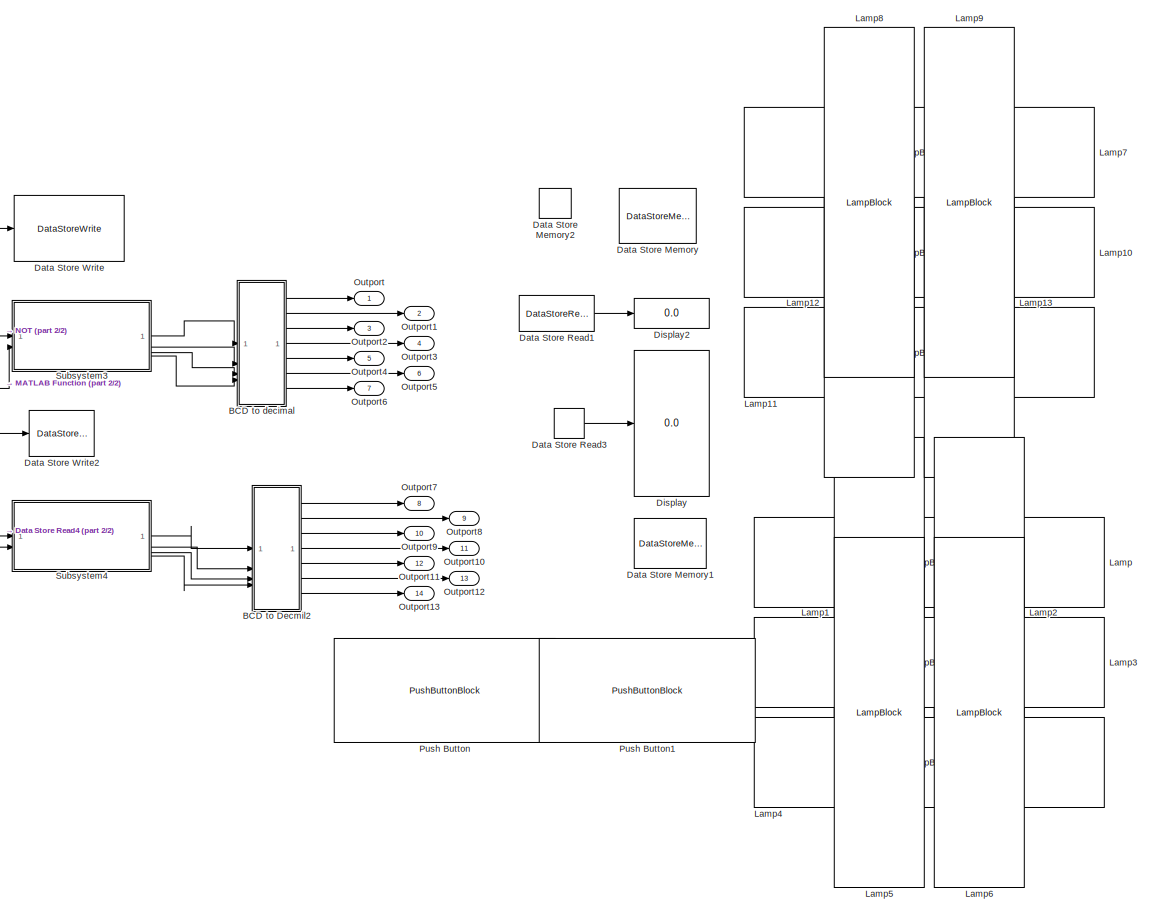
[diagram: root canvas - part 1/2, right side, full height]
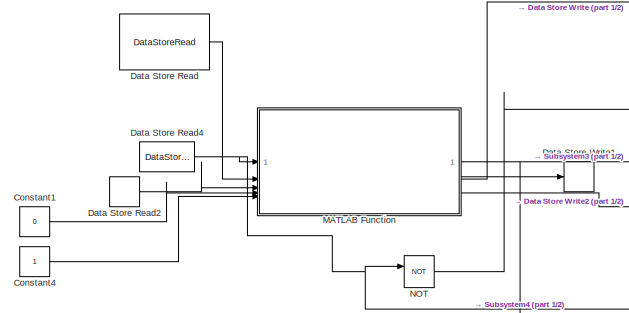
[diagram: root canvas - part 2/2, middle left region]
MODEL slx_940a280b1a0e
KIND model
CONFIG AbsTol = auto
CONFIG EnableMultiTasking = off
CONFIG FixedStep = auto
CONFIG MaxStep = auto
CONFIG MinStep = auto
CONFIG RelTol = 1e-3
CONFIG SampleTimeConstraint = Unconstrained
CONFIG SolverName = VariableStepAuto
CONFIG StartTime = 0.0
CONFIG StopTime = inf
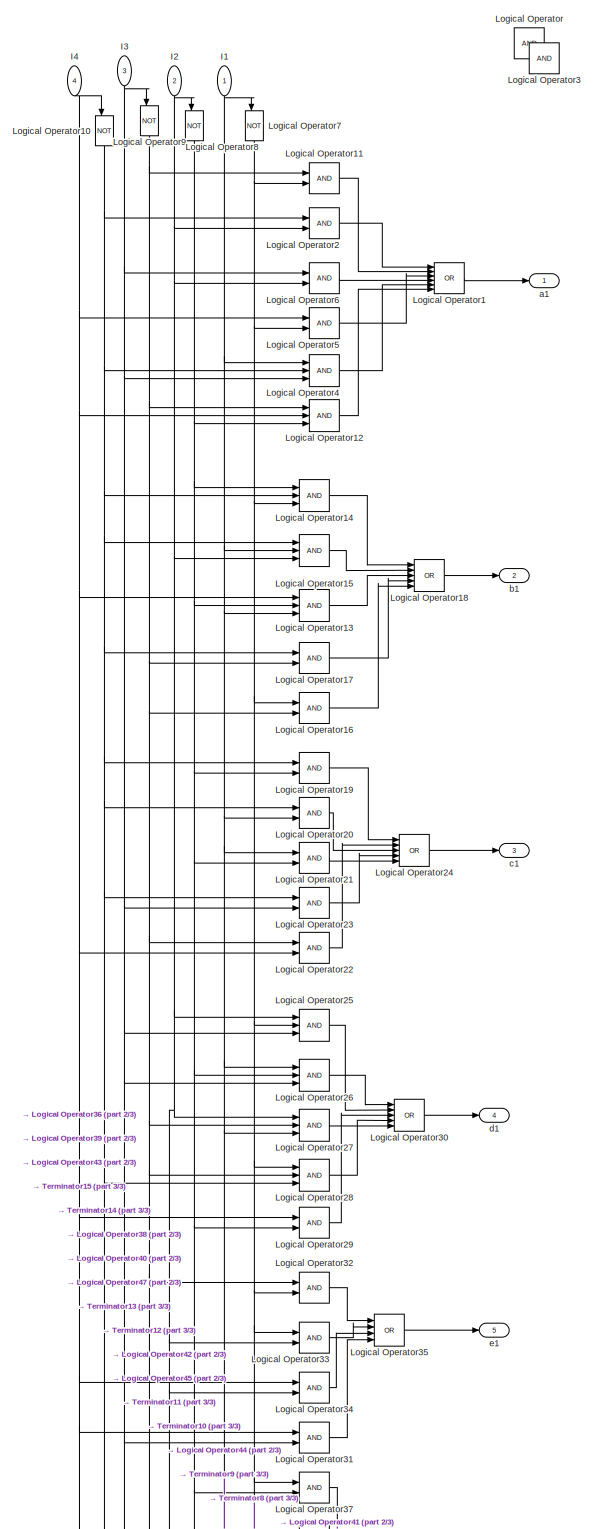
[diagram: BCD to Decmil2 - part 1/3, most of the canvas]
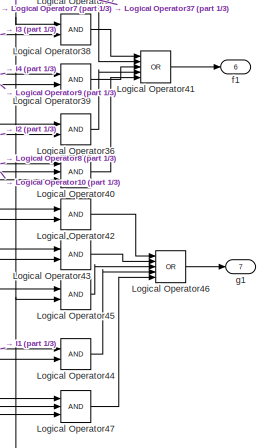
[diagram: BCD to Decmil2 - part 2/3, bottom center region]
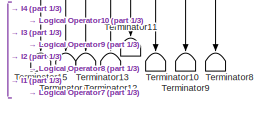
[diagram: BCD to Decmil2 - part 3/3, bottom left region]
BLOCK [SubSystem] BCD to Decmil2
  NameLocation = top
  TreatAsAtomicUnit = on
BLOCK [Inport] BCD to Decmil2/I1
  NameLocation = left
BLOCK [Inport] BCD to Decmil2/I2
  NameLocation = left
  Port = 2
BLOCK [Inport] BCD to Decmil2/I3
  NameLocation = left
  Port = 3
BLOCK [Inport] BCD to Decmil2/I4
  NameLocation = left
  Port = 4
BLOCK [Logic] BCD to Decmil2/Logical Operator
  AllPortsSameDT = off
  OutDataTypeStr = boolean
BLOCK [Logic] BCD to Decmil2/Logical Operator1
  AllPortsSameDT = off
  Inputs = 6
  Operator = OR
  OutDataTypeStr = boolean
BLOCK [Logic] BCD to Decmil2/Logical Operator10
  AllPortsSameDT = off
  NameLocation = left
  Operator = NOT
  OutDataTypeStr = boolean
BLOCK [Logic] BCD to Decmil2/Logical Operator11
  AllPortsSameDT = off
  OutDataTypeStr = boolean
BLOCK [Logic] BCD to Decmil2/Logical Operator12
  AllPortsSameDT = off
  Inputs = 3
  OutDataTypeStr = boolean
BLOCK [Logic] BCD to Decmil2/Logical Operator13
  AllPortsSameDT = off
  Inputs = 3
  OutDataTypeStr = boolean
BLOCK [Logic] BCD to Decmil2/Logical Operator14
  AllPortsSameDT = off
  Inputs = 3
  OutDataTypeStr = boolean
BLOCK [Logic] BCD to Decmil2/Logical Operator15
  AllPortsSameDT = off
  Inputs = 3
  OutDataTypeStr = boolean
BLOCK [Logic] BCD to Decmil2/Logical Operator16
  AllPortsSameDT = off
  OutDataTypeStr = boolean
BLOCK [Logic] BCD to Decmil2/Logical Operator17
  AllPortsSameDT = off
  OutDataTypeStr = boolean
BLOCK [Logic] BCD to Decmil2/Logical Operator18
  AllPortsSameDT = off
  Inputs = 5
  Operator = OR
  OutDataTypeStr = boolean
BLOCK [Logic] BCD to Decmil2/Logical Operator19
  AllPortsSameDT = off
  OutDataTypeStr = boolean
BLOCK [Logic] BCD to Decmil2/Logical Operator2
  AllPortsSameDT = off
  OutDataTypeStr = boolean
BLOCK [Logic] BCD to Decmil2/Logical Operator20
  AllPortsSameDT = off
  OutDataTypeStr = boolean
BLOCK [Logic] BCD to Decmil2/Logical Operator21
  AllPortsSameDT = off
  OutDataTypeStr = boolean
BLOCK [Logic] BCD to Decmil2/Logical Operator22
  AllPortsSameDT = off
  OutDataTypeStr = boolean
BLOCK [Logic] BCD to Decmil2/Logical Operator23
  AllPortsSameDT = off
  OutDataTypeStr = boolean
BLOCK [Logic] BCD to Decmil2/Logical Operator24
  AllPortsSameDT = off
  Inputs = 5
  Operator = OR
  OutDataTypeStr = boolean
BLOCK [Logic] BCD to Decmil2/Logical Operator25
  AllPortsSameDT = off
  Inputs = 3
  OutDataTypeStr = boolean
BLOCK [Logic] BCD to Decmil2/Logical Operator26
  AllPortsSameDT = off
  Inputs = 3
  OutDataTypeStr = boolean
BLOCK [Logic] BCD to Decmil2/Logical Operator27
  AllPortsSameDT = off
  Inputs = 3
  OutDataTypeStr = boolean
BLOCK [Logic] BCD to Decmil2/Logical Operator28
  AllPortsSameDT = off
  Inputs = 3
  OutDataTypeStr = boolean
BLOCK [Logic] BCD to Decmil2/Logical Operator29
  AllPortsSameDT = off
  OutDataTypeStr = boolean
BLOCK [Logic] BCD to Decmil2/Logical Operator3
  AllPortsSameDT = off
  OutDataTypeStr = boolean
BLOCK [Logic] BCD to Decmil2/Logical Operator30
  AllPortsSameDT = off
  Inputs = 5
  Operator = OR
  OutDataTypeStr = boolean
BLOCK [Logic] BCD to Decmil2/Logical Operator31
  AllPortsSameDT = off
  OutDataTypeStr = boolean
BLOCK [Logic] BCD to Decmil2/Logical Operator32
  AllPortsSameDT = off
  OutDataTypeStr = boolean
BLOCK [Logic] BCD to Decmil2/Logical Operator33
  AllPortsSameDT = off
  OutDataTypeStr = boolean
BLOCK [Logic] BCD to Decmil2/Logical Operator34
  AllPortsSameDT = off
  OutDataTypeStr = boolean
BLOCK [Logic] BCD to Decmil2/Logical Operator35
  AllPortsSameDT = off
  Inputs = 4
  Operator = OR
  OutDataTypeStr = boolean
BLOCK [Logic] BCD to Decmil2/Logical Operator36
  AllPortsSameDT = off
  OutDataTypeStr = boolean
BLOCK [Logic] BCD to Decmil2/Logical Operator37
  AllPortsSameDT = off
  OutDataTypeStr = boolean
BLOCK [Logic] BCD to Decmil2/Logical Operator38
  AllPortsSameDT = off
  OutDataTypeStr = boolean
BLOCK [Logic] BCD to Decmil2/Logical Operator39
  AllPortsSameDT = off
  OutDataTypeStr = boolean
BLOCK [Logic] BCD to Decmil2/Logical Operator4
  AllPortsSameDT = off
  Inputs = 3
  OutDataTypeStr = boolean
BLOCK [Logic] BCD to Decmil2/Logical Operator40
  AllPortsSameDT = off
  Inputs = 3
  OutDataTypeStr = boolean
BLOCK [Logic] BCD to Decmil2/Logical Operator41
  AllPortsSameDT = off
  Inputs = 5
  Operator = OR
  OutDataTypeStr = boolean
BLOCK [Logic] BCD to Decmil2/Logical Operator42
  AllPortsSameDT = off
  OutDataTypeStr = boolean
BLOCK [Logic] BCD to Decmil2/Logical Operator43
  AllPortsSameDT = off
  OutDataTypeStr = boolean
BLOCK [Logic] BCD to Decmil2/Logical Operator44
  AllPortsSameDT = off
  OutDataTypeStr = boolean
BLOCK [Logic] BCD to Decmil2/Logical Operator45
  AllPortsSameDT = off
  OutDataTypeStr = boolean
BLOCK [Logic] BCD to Decmil2/Logical Operator46
  AllPortsSameDT = off
  Inputs = 5
  Operator = OR
  OutDataTypeStr = boolean
BLOCK [Logic] BCD to Decmil2/Logical Operator47
  AllPortsSameDT = off
  Inputs = 3
  OutDataTypeStr = boolean
BLOCK [Logic] BCD to Decmil2/Logical Operator5
  AllPortsSameDT = off
  OutDataTypeStr = boolean
BLOCK [Logic] BCD to Decmil2/Logical Operator6
  AllPortsSameDT = off
  OutDataTypeStr = boolean
BLOCK [Logic] BCD to Decmil2/Logical Operator7
  AllPortsSameDT = off
  NameLocation = left
  Operator = NOT
  OutDataTypeStr = boolean
BLOCK [Logic] BCD to Decmil2/Logical Operator8
  AllPortsSameDT = off
  NameLocation = left
  Operator = NOT
  OutDataTypeStr = boolean
BLOCK [Logic] BCD to Decmil2/Logical Operator9
  AllPortsSameDT = off
  NameLocation = left
  Operator = NOT
  OutDataTypeStr = boolean
BLOCK [Terminator] BCD to Decmil2/Terminator10
  NameLocation = left
BLOCK [Terminator] BCD to Decmil2/Terminator11
  NameLocation = left
BLOCK [Terminator] BCD to Decmil2/Terminator12
  NameLocation = left
BLOCK [Terminator] BCD to Decmil2/Terminator13
  NameLocation = left
BLOCK [Terminator] BCD to Decmil2/Terminator14
  NameLocation = left
BLOCK [Terminator] BCD to Decmil2/Terminator15
  NameLocation = left
BLOCK [Terminator] BCD to Decmil2/Terminator8
  NameLocation = left
BLOCK [Terminator] BCD to Decmil2/Terminator9
  NameLocation = left
BLOCK [Outport] BCD to Decmil2/a1
BLOCK [Outport] BCD to Decmil2/b1
  Port = 2
BLOCK [Outport] BCD to Decmil2/c1
  Port = 3
BLOCK [Outport] BCD to Decmil2/d1
  Port = 4
BLOCK [Outport] BCD to Decmil2/e1
  Port = 5
BLOCK [Outport] BCD to Decmil2/f1
  Port = 6
BLOCK [Outport] BCD to Decmil2/g1
  Port = 7
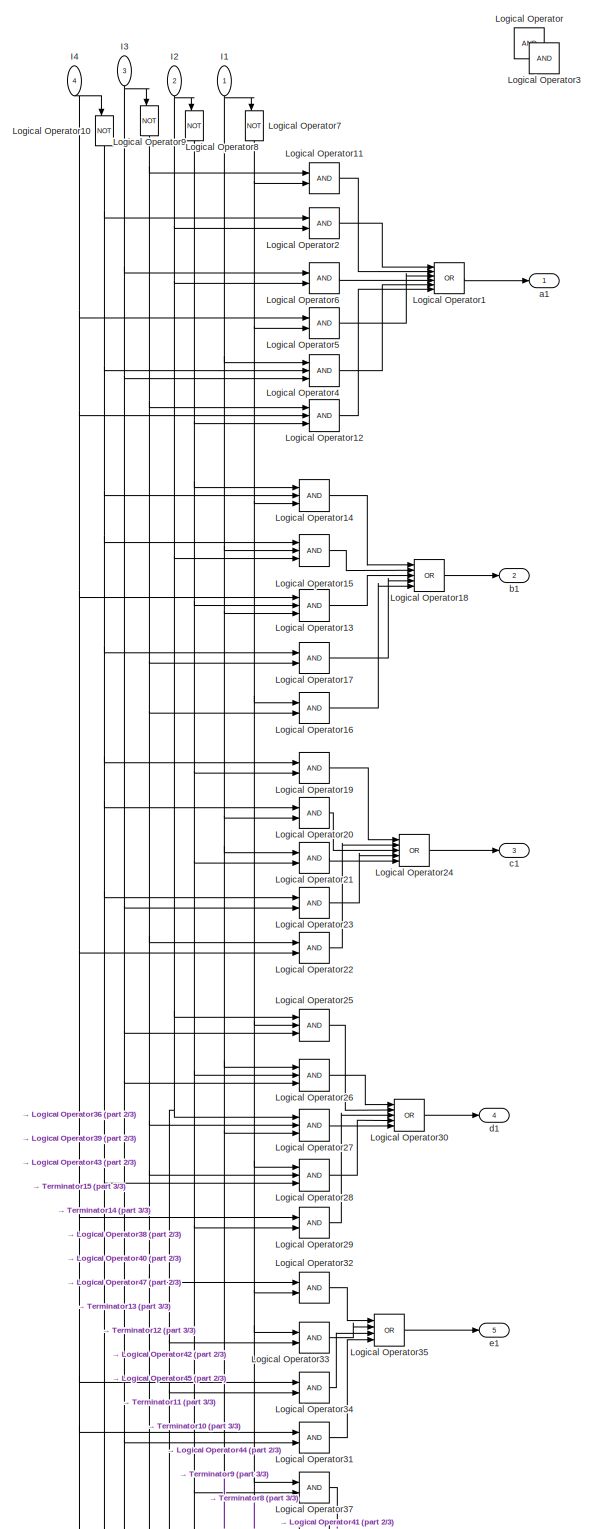
[diagram: BCD to decimal - part 1/3, most of the canvas]
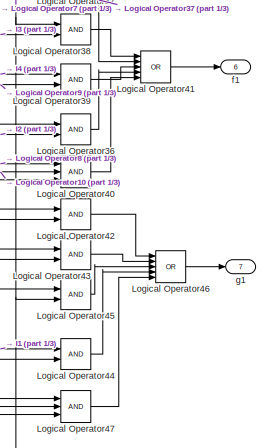
[diagram: BCD to decimal - part 2/3, bottom center region]
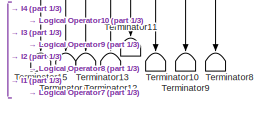
[diagram: BCD to decimal - part 3/3, bottom left region]
BLOCK [SubSystem] BCD to decimal
  NameLocation = top
  TreatAsAtomicUnit = on
BLOCK [Inport] BCD to decimal/I1
  NameLocation = left
BLOCK [Inport] BCD to decimal/I2
  NameLocation = left
  Port = 2
BLOCK [Inport] BCD to decimal/I3
  NameLocation = left
  Port = 3
BLOCK [Inport] BCD to decimal/I4
  NameLocation = left
  Port = 4
BLOCK [Logic] BCD to decimal/Logical Operator
  AllPortsSameDT = off
  OutDataTypeStr = boolean
BLOCK [Logic] BCD to decimal/Logical Operator1
  AllPortsSameDT = off
  Inputs = 6
  Operator = OR
  OutDataTypeStr = boolean
BLOCK [Logic] BCD to decimal/Logical Operator10
  AllPortsSameDT = off
  NameLocation = left
  Operator = NOT
  OutDataTypeStr = boolean
BLOCK [Logic] BCD to decimal/Logical Operator11
  AllPortsSameDT = off
  OutDataTypeStr = boolean
BLOCK [Logic] BCD to decimal/Logical Operator12
  AllPortsSameDT = off
  Inputs = 3
  OutDataTypeStr = boolean
BLOCK [Logic] BCD to decimal/Logical Operator13
  AllPortsSameDT = off
  Inputs = 3
  OutDataTypeStr = boolean
BLOCK [Logic] BCD to decimal/Logical Operator14
  AllPortsSameDT = off
  Inputs = 3
  OutDataTypeStr = boolean
BLOCK [Logic] BCD to decimal/Logical Operator15
  AllPortsSameDT = off
  Inputs = 3
  OutDataTypeStr = boolean
BLOCK [Logic] BCD to decimal/Logical Operator16
  AllPortsSameDT = off
  OutDataTypeStr = boolean
BLOCK [Logic] BCD to decimal/Logical Operator17
  AllPortsSameDT = off
  OutDataTypeStr = boolean
BLOCK [Logic] BCD to decimal/Logical Operator18
  AllPortsSameDT = off
  Inputs = 5
  Operator = OR
  OutDataTypeStr = boolean
BLOCK [Logic] BCD to decimal/Logical Operator19
  AllPortsSameDT = off
  OutDataTypeStr = boolean
BLOCK [Logic] BCD to decimal/Logical Operator2
  AllPortsSameDT = off
  OutDataTypeStr = boolean
BLOCK [Logic] BCD to decimal/Logical Operator20
  AllPortsSameDT = off
  OutDataTypeStr = boolean
BLOCK [Logic] BCD to decimal/Logical Operator21
  AllPortsSameDT = off
  OutDataTypeStr = boolean
BLOCK [Logic] BCD to decimal/Logical Operator22
  AllPortsSameDT = off
  OutDataTypeStr = boolean
BLOCK [Logic] BCD to decimal/Logical Operator23
  AllPortsSameDT = off
  OutDataTypeStr = boolean
BLOCK [Logic] BCD to decimal/Logical Operator24
  AllPortsSameDT = off
  Inputs = 5
  Operator = OR
  OutDataTypeStr = boolean
BLOCK [Logic] BCD to decimal/Logical Operator25
  AllPortsSameDT = off
  Inputs = 3
  OutDataTypeStr = boolean
BLOCK [Logic] BCD to decimal/Logical Operator26
  AllPortsSameDT = off
  Inputs = 3
  OutDataTypeStr = boolean
BLOCK [Logic] BCD to decimal/Logical Operator27
  AllPortsSameDT = off
  Inputs = 3
  OutDataTypeStr = boolean
BLOCK [Logic] BCD to decimal/Logical Operator28
  AllPortsSameDT = off
  Inputs = 3
  OutDataTypeStr = boolean
BLOCK [Logic] BCD to decimal/Logical Operator29
  AllPortsSameDT = off
  OutDataTypeStr = boolean
BLOCK [Logic] BCD to decimal/Logical Operator3
  AllPortsSameDT = off
  OutDataTypeStr = boolean
BLOCK [Logic] BCD to decimal/Logical Operator30
  AllPortsSameDT = off
  Inputs = 5
  Operator = OR
  OutDataTypeStr = boolean
BLOCK [Logic] BCD to decimal/Logical Operator31
  AllPortsSameDT = off
  OutDataTypeStr = boolean
BLOCK [Logic] BCD to decimal/Logical Operator32
  AllPortsSameDT = off
  OutDataTypeStr = boolean
BLOCK [Logic] BCD to decimal/Logical Operator33
  AllPortsSameDT = off
  OutDataTypeStr = boolean
BLOCK [Logic] BCD to decimal/Logical Operator34
  AllPortsSameDT = off
  OutDataTypeStr = boolean
BLOCK [Logic] BCD to decimal/Logical Operator35
  AllPortsSameDT = off
  Inputs = 4
  Operator = OR
  OutDataTypeStr = boolean
BLOCK [Logic] BCD to decimal/Logical Operator36
  AllPortsSameDT = off
  OutDataTypeStr = boolean
BLOCK [Logic] BCD to decimal/Logical Operator37
  AllPortsSameDT = off
  OutDataTypeStr = boolean
BLOCK [Logic] BCD to decimal/Logical Operator38
  AllPortsSameDT = off
  OutDataTypeStr = boolean
BLOCK [Logic] BCD to decimal/Logical Operator39
  AllPortsSameDT = off
  OutDataTypeStr = boolean
BLOCK [Logic] BCD to decimal/Logical Operator4
  AllPortsSameDT = off
  Inputs = 3
  OutDataTypeStr = boolean
BLOCK [Logic] BCD to decimal/Logical Operator40
  AllPortsSameDT = off
  Inputs = 3
  OutDataTypeStr = boolean
BLOCK [Logic] BCD to decimal/Logical Operator41
  AllPortsSameDT = off
  Inputs = 5
  Operator = OR
  OutDataTypeStr = boolean
BLOCK [Logic] BCD to decimal/Logical Operator42
  AllPortsSameDT = off
  OutDataTypeStr = boolean
BLOCK [Logic] BCD to decimal/Logical Operator43
  AllPortsSameDT = off
  OutDataTypeStr = boolean
BLOCK [Logic] BCD to decimal/Logical Operator44
  AllPortsSameDT = off
  OutDataTypeStr = boolean
BLOCK [Logic] BCD to decimal/Logical Operator45
  AllPortsSameDT = off
  OutDataTypeStr = boolean
BLOCK [Logic] BCD to decimal/Logical Operator46
  AllPortsSameDT = off
  Inputs = 5
  Operator = OR
  OutDataTypeStr = boolean
BLOCK [Logic] BCD to decimal/Logical Operator47
  AllPortsSameDT = off
  Inputs = 3
  OutDataTypeStr = boolean
BLOCK [Logic] BCD to decimal/Logical Operator5
  AllPortsSameDT = off
  OutDataTypeStr = boolean
BLOCK [Logic] BCD to decimal/Logical Operator6
  AllPortsSameDT = off
  OutDataTypeStr = boolean
BLOCK [Logic] BCD to decimal/Logical Operator7
  AllPortsSameDT = off
  NameLocation = left
  Operator = NOT
  OutDataTypeStr = boolean
BLOCK [Logic] BCD to decimal/Logical Operator8
  AllPortsSameDT = off
  NameLocation = left
  Operator = NOT
  OutDataTypeStr = boolean
BLOCK [Logic] BCD to decimal/Logical Operator9
  AllPortsSameDT = off
  NameLocation = left
  Operator = NOT
  OutDataTypeStr = boolean
BLOCK [Terminator] BCD to decimal/Terminator10
  NameLocation = left
BLOCK [Terminator] BCD to decimal/Terminator11
  NameLocation = left
BLOCK [Terminator] BCD to decimal/Terminator12
  NameLocation = left
BLOCK [Terminator] BCD to decimal/Terminator13
  NameLocation = left
BLOCK [Terminator] BCD to decimal/Terminator14
  NameLocation = left
BLOCK [Terminator] BCD to decimal/Terminator15
  NameLocation = left
BLOCK [Terminator] BCD to decimal/Terminator8
  NameLocation = left
BLOCK [Terminator] BCD to decimal/Terminator9
  NameLocation = left
BLOCK [Outport] BCD to decimal/a1
BLOCK [Outport] BCD to decimal/b1
  Port = 2
BLOCK [Outport] BCD to decimal/c1
  Port = 3
BLOCK [Outport] BCD to decimal/d1
  Port = 4
BLOCK [Outport] BCD to decimal/e1
  Port = 5
BLOCK [Outport] BCD to decimal/f1
  Port = 6
BLOCK [Outport] BCD to decimal/g1
  Port = 7
BLOCK [Constant] Constant1
  Value = 0
BLOCK [Constant] Constant4
BLOCK [DataStoreMemory] Data Store Memory
  DataStoreName = Empty_place
  InitialValue = 8
  OutDataTypeStr = double
  ShowAdditionalParam = off
  WriteAfterWriteMsg = warning
BLOCK [DataStoreMemory] Data Store Memory1
  DataStoreName = LOTS
  InitialValue = [0,0,0,0,0,0,0,0]
  ShowAdditionalParam = off
  WriteAfterWriteMsg = warning
BLOCK [DataStoreMemory] Data Store Memory2
  DataStoreName = up_down
  ShowAdditionalParam = off
  WriteAfterWriteMsg = warning
BLOCK [DataStoreRead] Data Store Read
  DataStoreName = Empty_place
  IndexOptions = Index vector (dialog)
  Indices = 1
  OutputSizes = 1
BLOCK [DataStoreRead] Data Store Read1
  DataStoreName = Empty_place
  IndexOptions = Index vector (dialog)
  Indices = 1
  OutputSizes = 1
BLOCK [DataStoreRead] Data Store Read2
  DataStoreName = LOTS
  IndexOptions = Index vector (dialog)
  Indices = 1
  OutputSizes = 1
BLOCK [DataStoreRead] Data Store Read3
  DataStoreName = LOTS
  IndexOptions = Index vector (dialog)
  Indices = 1
  OutputSizes = 1
BLOCK [DataStoreRead] Data Store Read4
  DataStoreName = up_down
  IndexOptions = Index vector (dialog)
  Indices = 1
  OutputSizes = 1
BLOCK [DataStoreWrite] Data Store Write
  DataStoreName = Empty_place
  IndexOptions = Index vector (dialog)
  Indices = 1
  OutputSizes = 1
BLOCK [DataStoreWrite] Data Store Write1
  DataStoreName = LOTS
  IndexOptions = Index vector (dialog)
  Indices = 1
  OutputSizes = 1
BLOCK [DataStoreWrite] Data Store Write2
  DataStoreName = up_down
  IndexOptions = Index vector (dialog)
  Indices = 1
  OutputSizes = 1
BLOCK [Display] Display
  Decimation = 1
BLOCK [Display] Display2
  Decimation = 1
BLOCK [LampBlock] Lamp
  Icon = Rectangle
  LabelPosition = Hide
BLOCK [LampBlock] Lamp1
  Icon = Rectangle
  LabelPosition = Hide
  NameLocation = left
BLOCK [LampBlock] Lamp10
  Icon = Rectangle
  LabelPosition = Hide
BLOCK [LampBlock] Lamp11
  Icon = Rectangle
  LabelPosition = Hide
BLOCK [LampBlock] Lamp12
  Icon = Rectangle
  LabelPosition = Hide
  NameLocation = left
BLOCK [LampBlock] Lamp13
  Icon = Rectangle
  LabelPosition = Hide
  NameLocation = left
BLOCK [LampBlock] Lamp2
  Icon = Rectangle
  LabelPosition = Hide
  NameLocation = left
BLOCK [LampBlock] Lamp3
  Icon = Rectangle
  LabelPosition = Hide
BLOCK [LampBlock] Lamp4
  Icon = Rectangle
  LabelPosition = Hide
BLOCK [LampBlock] Lamp5
  Icon = Rectangle
  LabelPosition = Hide
  NameLocation = left
BLOCK [LampBlock] Lamp6
  Icon = Rectangle
  LabelPosition = Hide
  NameLocation = left
BLOCK [LampBlock] Lamp7
  Icon = Rectangle
  LabelPosition = Hide
BLOCK [LampBlock] Lamp8
  Icon = Rectangle
  LabelPosition = Hide
  NameLocation = left
BLOCK [LampBlock] Lamp9
  Icon = Rectangle
  LabelPosition = Hide
  NameLocation = left
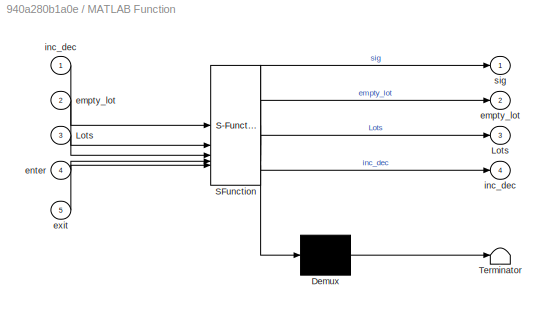
BLOCK [SubSystem] MATLAB Function
  ErrorFcn = Stateflow.Translate.translate
  PermitHierarchicalResolution = ExplicitOnly
  SFBlockType = MATLAB Function
  TreatAsAtomicUnit = on
BLOCK [Demux] MATLAB Function/ Demux 
  Outputs = 1
BLOCK [S-Function] MATLAB Function/ SFunction 
  EnableBusSupport = on
  FunctionName = sf_sfun
  PortCounts = [5 5]
  SFcnIsStateOwnerBlock = off
  SFunctionDeploymentMode = off
  Tag = Stateflow S-Function 2
BLOCK [Terminator] MATLAB Function/ Terminator 
BLOCK [Outport] MATLAB Function/Lots
  Port = 3
BLOCK [Inport] MATLAB Function/Lots 
  Port = 3
BLOCK [Outport] MATLAB Function/empty_lot
  Port = 2
BLOCK [Inport] MATLAB Function/empty_lot 
  Port = 2
BLOCK [Inport] MATLAB Function/enter
  Port = 4
BLOCK [Inport] MATLAB Function/exit
  Port = 5
BLOCK [Outport] MATLAB Function/inc_dec
  Port = 4
BLOCK [Inport] MATLAB Function/inc_dec 
BLOCK [Outport] MATLAB Function/sig
BLOCK [Logic] NOT
  AllPortsSameDT = off
  IconShape = distinctive
  Operator = NOT
  OutDataTypeStr = boolean
BLOCK [Outport] Outport
BLOCK [Outport] Outport1
  Port = 2
BLOCK [Outport] Outport10
  Port = 11
BLOCK [Outport] Outport11
  Port = 12
BLOCK [Outport] Outport12
  Port = 13
BLOCK [Outport] Outport13
  Port = 14
BLOCK [Outport] Outport2
  Port = 3
BLOCK [Outport] Outport3
  Port = 4
BLOCK [Outport] Outport4
  Port = 5
BLOCK [Outport] Outport5
  Port = 6
BLOCK [Outport] Outport6
  Port = 7
BLOCK [Outport] Outport7
  Port = 8
BLOCK [Outport] Outport8
  Port = 9
BLOCK [Outport] Outport9
  Port = 10
BLOCK [PushButtonBlock] Push Button
  ButtonText = Exit
  ButtonType = Latch
  OffValue = 0.000000
BLOCK [PushButtonBlock] Push Button1
  ButtonText = Enter
  ButtonType = Latch
  OffValue = 0.000000
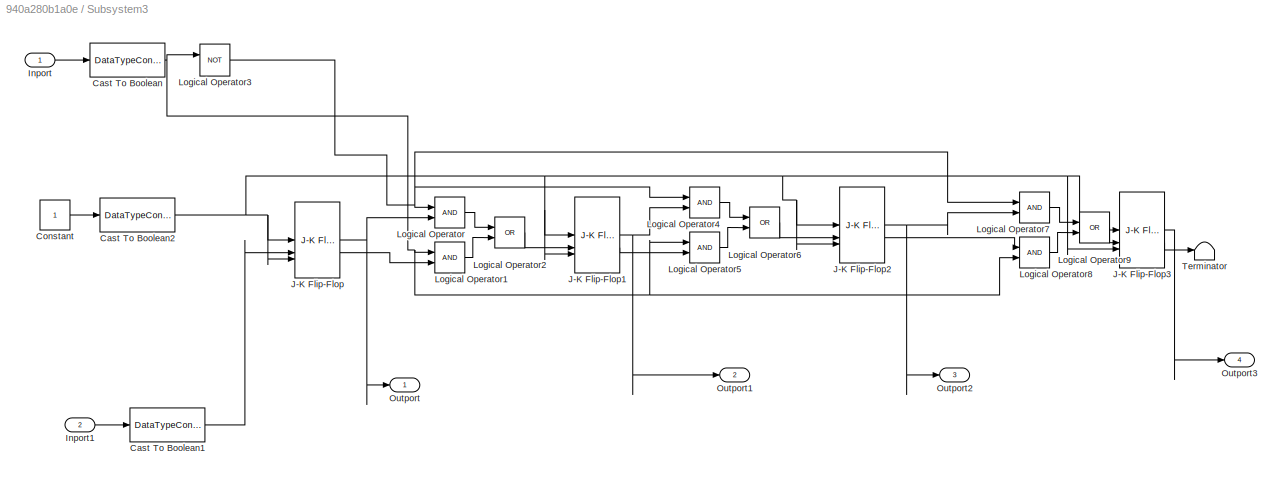
BLOCK [SubSystem] Subsystem3
BLOCK [DataTypeConversion] Subsystem3/Cast To Boolean
  OutDataTypeStr = boolean
  RndMeth = Floor
  SaturateOnIntegerOverflow = off
BLOCK [DataTypeConversion] Subsystem3/Cast To Boolean1
  OutDataTypeStr = boolean
  RndMeth = Floor
  SaturateOnIntegerOverflow = off
BLOCK [DataTypeConversion] Subsystem3/Cast To Boolean2
  OutDataTypeStr = boolean
  RndMeth = Floor
  SaturateOnIntegerOverflow = off
BLOCK [Constant] Subsystem3/Constant
  SampleTime = -1
BLOCK [Inport] Subsystem3/Inport
BLOCK [Inport] Subsystem3/Inport1
  Port = 2
BLOCK [Reference] Subsystem3/J-K Flip-Flop  REF=simulink_extras/Flip Flops/J-K
Flip-Flop
  SourceBlock = simulink_extras/Flip Flops/J-K\nFlip-Flop
  SourceType = JKFlipFlop
BLOCK [Reference] Subsystem3/J-K Flip-Flop1  REF=simulink_extras/Flip Flops/J-K
Flip-Flop
  SourceBlock = simulink_extras/Flip Flops/J-K\nFlip-Flop
  SourceType = JKFlipFlop
BLOCK [Reference] Subsystem3/J-K Flip-Flop2  REF=simulink_extras/Flip Flops/J-K
Flip-Flop
  SourceBlock = simulink_extras/Flip Flops/J-K\nFlip-Flop
  SourceType = JKFlipFlop
BLOCK [Reference] Subsystem3/J-K Flip-Flop3  REF=simulink_extras/Flip Flops/J-K
Flip-Flop
  SourceBlock = simulink_extras/Flip Flops/J-K\nFlip-Flop
  SourceType = JKFlipFlop
BLOCK [Logic] Subsystem3/Logical Operator
  AllPortsSameDT = off
  OutDataTypeStr = boolean
BLOCK [Logic] Subsystem3/Logical Operator1
  AllPortsSameDT = off
  OutDataTypeStr = boolean
BLOCK [Logic] Subsystem3/Logical Operator2
  AllPortsSameDT = off
  Operator = OR
  OutDataTypeStr = boolean
BLOCK [Logic] Subsystem3/Logical Operator3
  AllPortsSameDT = off
  Operator = NOT
  OutDataTypeStr = boolean
BLOCK [Logic] Subsystem3/Logical Operator4
  AllPortsSameDT = off
  OutDataTypeStr = boolean
BLOCK [Logic] Subsystem3/Logical Operator5
  AllPortsSameDT = off
  OutDataTypeStr = boolean
BLOCK [Logic] Subsystem3/Logical Operator6
  AllPortsSameDT = off
  Operator = OR
  OutDataTypeStr = boolean
BLOCK [Logic] Subsystem3/Logical Operator7
  AllPortsSameDT = off
  OutDataTypeStr = boolean
BLOCK [Logic] Subsystem3/Logical Operator8
  AllPortsSameDT = off
  OutDataTypeStr = boolean
BLOCK [Logic] Subsystem3/Logical Operator9
  AllPortsSameDT = off
  Operator = OR
  OutDataTypeStr = boolean
BLOCK [Outport] Subsystem3/Outport
BLOCK [Outport] Subsystem3/Outport1
  Port = 2
BLOCK [Outport] Subsystem3/Outport2
  Port = 3
BLOCK [Outport] Subsystem3/Outport3
  Port = 4
BLOCK [Terminator] Subsystem3/Terminator
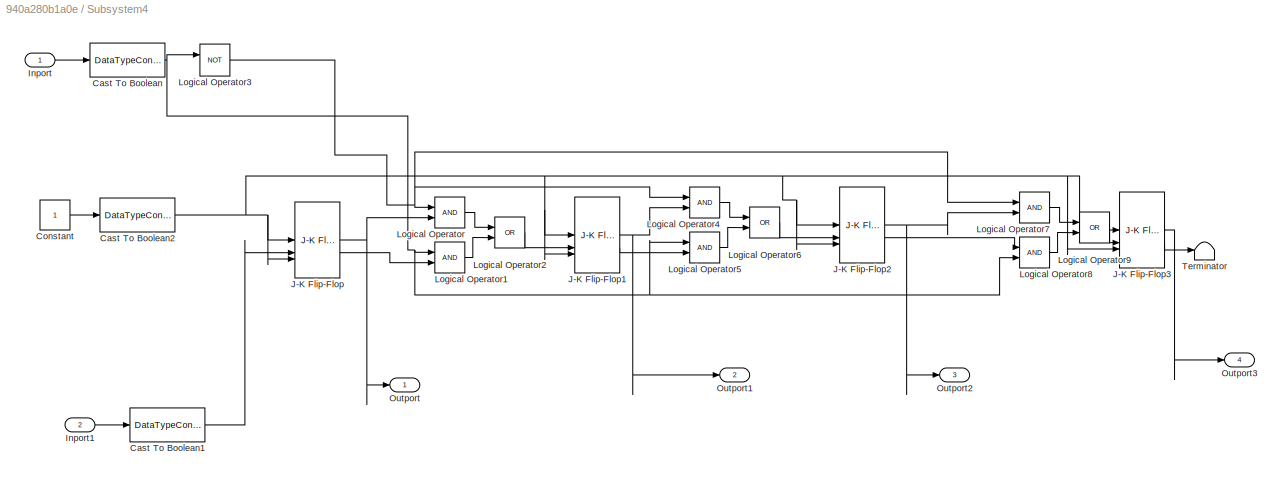
BLOCK [SubSystem] Subsystem4
BLOCK [DataTypeConversion] Subsystem4/Cast To Boolean
  OutDataTypeStr = boolean
  RndMeth = Floor
  SaturateOnIntegerOverflow = off
BLOCK [DataTypeConversion] Subsystem4/Cast To Boolean1
  OutDataTypeStr = boolean
  RndMeth = Floor
  SaturateOnIntegerOverflow = off
BLOCK [DataTypeConversion] Subsystem4/Cast To Boolean2
  OutDataTypeStr = boolean
  RndMeth = Floor
  SaturateOnIntegerOverflow = off
BLOCK [Constant] Subsystem4/Constant
  SampleTime = -1
BLOCK [Inport] Subsystem4/Inport
BLOCK [Inport] Subsystem4/Inport1
  Port = 2
BLOCK [Reference] Subsystem4/J-K Flip-Flop  REF=simulink_extras/Flip Flops/J-K
Flip-Flop
  SourceBlock = simulink_extras/Flip Flops/J-K\nFlip-Flop
  SourceType = JKFlipFlop
BLOCK [Reference] Subsystem4/J-K Flip-Flop1  REF=simulink_extras/Flip Flops/J-K
Flip-Flop
  SourceBlock = simulink_extras/Flip Flops/J-K\nFlip-Flop
  SourceType = JKFlipFlop
BLOCK [Reference] Subsystem4/J-K Flip-Flop2  REF=simulink_extras/Flip Flops/J-K
Flip-Flop
  SourceBlock = simulink_extras/Flip Flops/J-K\nFlip-Flop
  SourceType = JKFlipFlop
BLOCK [Reference] Subsystem4/J-K Flip-Flop3  REF=simulink_extras/Flip Flops/J-K
Flip-Flop
  SourceBlock = simulink_extras/Flip Flops/J-K\nFlip-Flop
  SourceType = JKFlipFlop
BLOCK [Logic] Subsystem4/Logical Operator
  AllPortsSameDT = off
  OutDataTypeStr = boolean
BLOCK [Logic] Subsystem4/Logical Operator1
  AllPortsSameDT = off
  OutDataTypeStr = boolean
BLOCK [Logic] Subsystem4/Logical Operator2
  AllPortsSameDT = off
  Operator = OR
  OutDataTypeStr = boolean
BLOCK [Logic] Subsystem4/Logical Operator3
  AllPortsSameDT = off
  Operator = NOT
  OutDataTypeStr = boolean
BLOCK [Logic] Subsystem4/Logical Operator4
  AllPortsSameDT = off
  OutDataTypeStr = boolean
BLOCK [Logic] Subsystem4/Logical Operator5
  AllPortsSameDT = off
  OutDataTypeStr = boolean
BLOCK [Logic] Subsystem4/Logical Operator6
  AllPortsSameDT = off
  Operator = OR
  OutDataTypeStr = boolean
BLOCK [Logic] Subsystem4/Logical Operator7
  AllPortsSameDT = off
  OutDataTypeStr = boolean
BLOCK [Logic] Subsystem4/Logical Operator8
  AllPortsSameDT = off
  OutDataTypeStr = boolean
BLOCK [Logic] Subsystem4/Logical Operator9
  AllPortsSameDT = off
  Operator = OR
  OutDataTypeStr = boolean
BLOCK [Outport] Subsystem4/Outport
BLOCK [Outport] Subsystem4/Outport1
  Port = 2
BLOCK [Outport] Subsystem4/Outport2
  Port = 3
BLOCK [Outport] Subsystem4/Outport3
  Port = 4
BLOCK [Terminator] Subsystem4/Terminator
NET BCD to Decmil2/I1:1 -> BCD to Decmil2/Logical Operator13:3, BCD to Decmil2/Logical Operator15:2, BCD to Decmil2/Logical Operator20:2, BCD to Decmil2/Logical Operator21:1, BCD to Decmil2/Logical Operator26:1, BCD to Decmil2/Logical Operator27:3, BCD to Decmil2/Logical Operator44:1, BCD to Decmil2/Logical Operator4:1, BCD to Decmil2/Logical Operator7:1, BCD to Decmil2/Terminator9:1
NET BCD to Decmil2/I2:1 -> BCD to Decmil2/Logical Operator15:3, BCD to Decmil2/Logical Operator25:1, BCD to Decmil2/Logical Operator27:1, BCD to Decmil2/Logical Operator2:2, BCD to Decmil2/Logical Operator33:2, BCD to Decmil2/Logical Operator34:2, BCD to Decmil2/Logical Operator36:2, BCD to Decmil2/Logical Operator42:2, BCD to Decmil2/Logical Operator45:1, BCD to Decmil2/Logical Operator6:2, BCD to Decmil2/Logical Operator8:1, BCD to Decmil2/Terminator11:1
NET BCD to Decmil2/I3:1 -> BCD to Decmil2/Logical Operator23:2, BCD to Decmil2/Logical Operator25:3, BCD to Decmil2/Logical Operator26:3, BCD to Decmil2/Logical Operator31:2, BCD to Decmil2/Logical Operator38:2, BCD to Decmil2/Logical Operator40:3, BCD to Decmil2/Logical Operator47:1, BCD to Decmil2/Logical Operator4:3, BCD to Decmil2/Logical Operator6:1, BCD to Decmil2/Logical Operator9:1, BCD to Decmil2/Terminator13:1
NET BCD to Decmil2/I4:1 -> BCD to Decmil2/Logical Operator10:1, BCD to Decmil2/Logical Operator12:2, BCD to Decmil2/Logical Operator13:1, BCD to Decmil2/Logical Operator22:2, BCD to Decmil2/Logical Operator29:1, BCD to Decmil2/Logical Operator31:1, BCD to Decmil2/Logical Operator34:1, BCD to Decmil2/Logical Operator36:1, BCD to Decmil2/Logical Operator39:1, BCD to Decmil2/Logical Operator43:1, BCD to Decmil2/Logical Operator44:2, BCD to Decmil2/Logical Operator5:1, BCD to Decmil2/Terminator15:1
NET BCD to Decmil2/Logical Operator10:1 -> BCD to Decmil2/Logical Operator14:2, BCD to Decmil2/Logical Operator15:1, BCD to Decmil2/Logical Operator17:1, BCD to Decmil2/Logical Operator19:1, BCD to Decmil2/Logical Operator20:1, BCD to Decmil2/Logical Operator23:1, BCD to Decmil2/Logical Operator28:3, BCD to Decmil2/Logical Operator2:1, BCD to Decmil2/Logical Operator40:2, BCD to Decmil2/Logical Operator47:2, BCD to Decmil2/Logical Operator4:2, BCD to Decmil2/Terminator14:1
LINE BCD to Decmil2/Logical Operator11:1 -> BCD to Decmil2/Logical Operator1:2
LINE BCD to Decmil2/Logical Operator12:1 -> BCD to Decmil2/Logical Operator1:6
LINE BCD to Decmil2/Logical Operator13:1 -> BCD to Decmil2/Logical Operator18:3
LINE BCD to Decmil2/Logical Operator14:1 -> BCD to Decmil2/Logical Operator18:1
LINE BCD to Decmil2/Logical Operator15:1 -> BCD to Decmil2/Logical Operator18:2
LINE BCD to Decmil2/Logical Operator16:1 -> BCD to Decmil2/Logical Operator18:5
LINE BCD to Decmil2/Logical Operator17:1 -> BCD to Decmil2/Logical Operator18:4
LINE BCD to Decmil2/Logical Operator18:1 -> BCD to Decmil2/b1:1
LINE BCD to Decmil2/Logical Operator19:1 -> BCD to Decmil2/Logical Operator24:1
LINE BCD to Decmil2/Logical Operator1:1 -> BCD to Decmil2/a1:1
LINE BCD to Decmil2/Logical Operator20:1 -> BCD to Decmil2/Logical Operator24:3
LINE BCD to Decmil2/Logical Operator21:1 -> BCD to Decmil2/Logical Operator24:5
LINE BCD to Decmil2/Logical Operator22:1 -> BCD to Decmil2/Logical Operator24:2
LINE BCD to Decmil2/Logical Operator23:1 -> BCD to Decmil2/Logical Operator24:4
LINE BCD to Decmil2/Logical Operator24:1 -> BCD to Decmil2/c1:1
LINE BCD to Decmil2/Logical Operator25:1 -> BCD to Decmil2/Logical Operator30:2
LINE BCD to Decmil2/Logical Operator26:1 -> BCD to Decmil2/Logical Operator30:1
LINE BCD to Decmil2/Logical Operator27:1 -> BCD to Decmil2/Logical Operator30:5
LINE BCD to Decmil2/Logical Operator28:1 -> BCD to Decmil2/Logical Operator30:4
LINE BCD to Decmil2/Logical Operator29:1 -> BCD to Decmil2/Logical Operator30:3
LINE BCD to Decmil2/Logical Operator2:1 -> BCD to Decmil2/Logical Operator1:1
LINE BCD to Decmil2/Logical Operator30:1 -> BCD to Decmil2/d1:1
LINE BCD to Decmil2/Logical Operator31:1 -> BCD to Decmil2/Logical Operator35:4
LINE BCD to Decmil2/Logical Operator32:1 -> BCD to Decmil2/Logical Operator35:1
LINE BCD to Decmil2/Logical Operator33:1 -> BCD to Decmil2/Logical Operator35:2
LINE BCD to Decmil2/Logical Operator34:1 -> BCD to Decmil2/Logical Operator35:3
LINE BCD to Decmil2/Logical Operator35:1 -> BCD to Decmil2/e1:1
LINE BCD to Decmil2/Logical Operator36:1 -> BCD to Decmil2/Logical Operator41:4
LINE BCD to Decmil2/Logical Operator37:1 -> BCD to Decmil2/Logical Operator41:2
LINE BCD to Decmil2/Logical Operator38:1 -> BCD to Decmil2/Logical Operator41:1
LINE BCD to Decmil2/Logical Operator39:1 -> BCD to Decmil2/Logical Operator41:3
LINE BCD to Decmil2/Logical Operator40:1 -> BCD to Decmil2/Logical Operator41:5
LINE BCD to Decmil2/Logical Operator41:1 -> BCD to Decmil2/f1:1
LINE BCD to Decmil2/Logical Operator42:1 -> BCD to Decmil2/Logical Operator46:1
LINE BCD to Decmil2/Logical Operator43:1 -> BCD to Decmil2/Logical Operator46:2
LINE BCD to Decmil2/Logical Operator44:1 -> BCD to Decmil2/Logical Operator46:4
LINE BCD to Decmil2/Logical Operator45:1 -> BCD to Decmil2/Logical Operator46:3
LINE BCD to Decmil2/Logical Operator46:1 -> BCD to Decmil2/g1:1
LINE BCD to Decmil2/Logical Operator47:1 -> BCD to Decmil2/Logical Operator46:5
LINE BCD to Decmil2/Logical Operator4:1 -> BCD to Decmil2/Logical Operator1:5
LINE BCD to Decmil2/Logical Operator5:1 -> BCD to Decmil2/Logical Operator1:3
LINE BCD to Decmil2/Logical Operator6:1 -> BCD to Decmil2/Logical Operator1:4
NET BCD to Decmil2/Logical Operator7:1 -> BCD to Decmil2/Logical Operator11:2, BCD to Decmil2/Logical Operator14:3, BCD to Decmil2/Logical Operator16:1, BCD to Decmil2/Logical Operator25:2, BCD to Decmil2/Logical Operator28:1, BCD to Decmil2/Logical Operator32:2, BCD to Decmil2/Logical Operator33:1, BCD to Decmil2/Logical Operator37:1, BCD to Decmil2/Logical Operator38:1, BCD to Decmil2/Logical Operator45:2, BCD to Decmil2/Logical Operator5:2, BCD to Decmil2/Terminator8:1
NET BCD to Decmil2/Logical Operator8:1 -> BCD to Decmil2/Logical Operator12:3, BCD to Decmil2/Logical Operator13:2, BCD to Decmil2/Logical Operator14:1, BCD to Decmil2/Logical Operator19:2, BCD to Decmil2/Logical Operator21:2, BCD to Decmil2/Logical Operator26:2, BCD to Decmil2/Logical Operator29:2, BCD to Decmil2/Logical Operator37:2, BCD to Decmil2/Logical Operator40:1, BCD to Decmil2/Logical Operator47:3, BCD to Decmil2/Terminator10:1
NET BCD to Decmil2/Logical Operator9:1 -> BCD to Decmil2/Logical Operator11:1, BCD to Decmil2/Logical Operator12:1, BCD to Decmil2/Logical Operator16:2, BCD to Decmil2/Logical Operator17:2, BCD to Decmil2/Logical Operator22:1, BCD to Decmil2/Logical Operator27:2, BCD to Decmil2/Logical Operator28:2, BCD to Decmil2/Logical Operator32:1, BCD to Decmil2/Logical Operator39:2, BCD to Decmil2/Logical Operator42:1, BCD to Decmil2/Logical Operator43:2, BCD to Decmil2/Terminator12:1
LINE BCD to Decmil2:1 -> Outport7:1
LINE BCD to Decmil2:2 -> Outport8:1
LINE BCD to Decmil2:3 -> Outport9:1
LINE BCD to Decmil2:4 -> Outport10:1
LINE BCD to Decmil2:5 -> Outport11:1
LINE BCD to Decmil2:6 -> Outport12:1
LINE BCD to Decmil2:7 -> Outport13:1
NET BCD to decimal/I1:1 -> BCD to decimal/Logical Operator13:3, BCD to decimal/Logical Operator15:2, BCD to decimal/Logical Operator20:2, BCD to decimal/Logical Operator21:1, BCD to decimal/Logical Operator26:1, BCD to decimal/Logical Operator27:3, BCD to decimal/Logical Operator44:1, BCD to decimal/Logical Operator4:1, BCD to decimal/Logical Operator7:1, BCD to decimal/Terminator9:1
NET BCD to decimal/I2:1 -> BCD to decimal/Logical Operator15:3, BCD to decimal/Logical Operator25:1, BCD to decimal/Logical Operator27:1, BCD to decimal/Logical Operator2:2, BCD to decimal/Logical Operator33:2, BCD to decimal/Logical Operator34:2, BCD to decimal/Logical Operator36:2, BCD to decimal/Logical Operator42:2, BCD to decimal/Logical Operator45:1, BCD to decimal/Logical Operator6:2, BCD to decimal/Logical Operator8:1, BCD to decimal/Terminator11:1
NET BCD to decimal/I3:1 -> BCD to decimal/Logical Operator23:2, BCD to decimal/Logical Operator25:3, BCD to decimal/Logical Operator26:3, BCD to decimal/Logical Operator31:2, BCD to decimal/Logical Operator38:2, BCD to decimal/Logical Operator40:3, BCD to decimal/Logical Operator47:1, BCD to decimal/Logical Operator4:3, BCD to decimal/Logical Operator6:1, BCD to decimal/Logical Operator9:1, BCD to decimal/Terminator13:1
NET BCD to decimal/I4:1 -> BCD to decimal/Logical Operator10:1, BCD to decimal/Logical Operator12:2, BCD to decimal/Logical Operator13:1, BCD to decimal/Logical Operator22:2, BCD to decimal/Logical Operator29:1, BCD to decimal/Logical Operator31:1, BCD to decimal/Logical Operator34:1, BCD to decimal/Logical Operator36:1, BCD to decimal/Logical Operator39:1, BCD to decimal/Logical Operator43:1, BCD to decimal/Logical Operator44:2, BCD to decimal/Logical Operator5:1, BCD to decimal/Terminator15:1
NET BCD to decimal/Logical Operator10:1 -> BCD to decimal/Logical Operator14:2, BCD to decimal/Logical Operator15:1, BCD to decimal/Logical Operator17:1, BCD to decimal/Logical Operator19:1, BCD to decimal/Logical Operator20:1, BCD to decimal/Logical Operator23:1, BCD to decimal/Logical Operator28:3, BCD to decimal/Logical Operator2:1, BCD to decimal/Logical Operator40:2, BCD to decimal/Logical Operator47:2, BCD to decimal/Logical Operator4:2, BCD to decimal/Terminator14:1
LINE BCD to decimal/Logical Operator11:1 -> BCD to decimal/Logical Operator1:2
LINE BCD to decimal/Logical Operator12:1 -> BCD to decimal/Logical Operator1:6
LINE BCD to decimal/Logical Operator13:1 -> BCD to decimal/Logical Operator18:3
LINE BCD to decimal/Logical Operator14:1 -> BCD to decimal/Logical Operator18:1
LINE BCD to decimal/Logical Operator15:1 -> BCD to decimal/Logical Operator18:2
LINE BCD to decimal/Logical Operator16:1 -> BCD to decimal/Logical Operator18:5
LINE BCD to decimal/Logical Operator17:1 -> BCD to decimal/Logical Operator18:4
LINE BCD to decimal/Logical Operator18:1 -> BCD to decimal/b1:1
LINE BCD to decimal/Logical Operator19:1 -> BCD to decimal/Logical Operator24:1
LINE BCD to decimal/Logical Operator1:1 -> BCD to decimal/a1:1
LINE BCD to decimal/Logical Operator20:1 -> BCD to decimal/Logical Operator24:3
LINE BCD to decimal/Logical Operator21:1 -> BCD to decimal/Logical Operator24:5
LINE BCD to decimal/Logical Operator22:1 -> BCD to decimal/Logical Operator24:2
LINE BCD to decimal/Logical Operator23:1 -> BCD to decimal/Logical Operator24:4
LINE BCD to decimal/Logical Operator24:1 -> BCD to decimal/c1:1
LINE BCD to decimal/Logical Operator25:1 -> BCD to decimal/Logical Operator30:2
LINE BCD to decimal/Logical Operator26:1 -> BCD to decimal/Logical Operator30:1
LINE BCD to decimal/Logical Operator27:1 -> BCD to decimal/Logical Operator30:5
LINE BCD to decimal/Logical Operator28:1 -> BCD to decimal/Logical Operator30:4
LINE BCD to decimal/Logical Operator29:1 -> BCD to decimal/Logical Operator30:3
LINE BCD to decimal/Logical Operator2:1 -> BCD to decimal/Logical Operator1:1
LINE BCD to decimal/Logical Operator30:1 -> BCD to decimal/d1:1
LINE BCD to decimal/Logical Operator31:1 -> BCD to decimal/Logical Operator35:4
LINE BCD to decimal/Logical Operator32:1 -> BCD to decimal/Logical Operator35:1
LINE BCD to decimal/Logical Operator33:1 -> BCD to decimal/Logical Operator35:2
LINE BCD to decimal/Logical Operator34:1 -> BCD to decimal/Logical Operator35:3
LINE BCD to decimal/Logical Operator35:1 -> BCD to decimal/e1:1
LINE BCD to decimal/Logical Operator36:1 -> BCD to decimal/Logical Operator41:4
LINE BCD to decimal/Logical Operator37:1 -> BCD to decimal/Logical Operator41:2
LINE BCD to decimal/Logical Operator38:1 -> BCD to decimal/Logical Operator41:1
LINE BCD to decimal/Logical Operator39:1 -> BCD to decimal/Logical Operator41:3
LINE BCD to decimal/Logical Operator40:1 -> BCD to decimal/Logical Operator41:5
LINE BCD to decimal/Logical Operator41:1 -> BCD to decimal/f1:1
LINE BCD to decimal/Logical Operator42:1 -> BCD to decimal/Logical Operator46:1
LINE BCD to decimal/Logical Operator43:1 -> BCD to decimal/Logical Operator46:2
LINE BCD to decimal/Logical Operator44:1 -> BCD to decimal/Logical Operator46:4
LINE BCD to decimal/Logical Operator45:1 -> BCD to decimal/Logical Operator46:3
LINE BCD to decimal/Logical Operator46:1 -> BCD to decimal/g1:1
LINE BCD to decimal/Logical Operator47:1 -> BCD to decimal/Logical Operator46:5
LINE BCD to decimal/Logical Operator4:1 -> BCD to decimal/Logical Operator1:5
LINE BCD to decimal/Logical Operator5:1 -> BCD to decimal/Logical Operator1:3
LINE BCD to decimal/Logical Operator6:1 -> BCD to decimal/Logical Operator1:4
NET BCD to decimal/Logical Operator7:1 -> BCD to decimal/Logical Operator11:2, BCD to decimal/Logical Operator14:3, BCD to decimal/Logical Operator16:1, BCD to decimal/Logical Operator25:2, BCD to decimal/Logical Operator28:1, BCD to decimal/Logical Operator32:2, BCD to decimal/Logical Operator33:1, BCD to decimal/Logical Operator37:1, BCD to decimal/Logical Operator38:1, BCD to decimal/Logical Operator45:2, BCD to decimal/Logical Operator5:2, BCD to decimal/Terminator8:1
NET BCD to decimal/Logical Operator8:1 -> BCD to decimal/Logical Operator12:3, BCD to decimal/Logical Operator13:2, BCD to decimal/Logical Operator14:1, BCD to decimal/Logical Operator19:2, BCD to decimal/Logical Operator21:2, BCD to decimal/Logical Operator26:2, BCD to decimal/Logical Operator29:2, BCD to decimal/Logical Operator37:2, BCD to decimal/Logical Operator40:1, BCD to decimal/Logical Operator47:3, BCD to decimal/Terminator10:1
NET BCD to decimal/Logical Operator9:1 -> BCD to decimal/Logical Operator11:1, BCD to decimal/Logical Operator12:1, BCD to decimal/Logical Operator16:2, BCD to decimal/Logical Operator17:2, BCD to decimal/Logical Operator22:1, BCD to decimal/Logical Operator27:2, BCD to decimal/Logical Operator28:2, BCD to decimal/Logical Operator32:1, BCD to decimal/Logical Operator39:2, BCD to decimal/Logical Operator42:1, BCD to decimal/Logical Operator43:2, BCD to decimal/Terminator12:1
LINE BCD to decimal:1 -> Outport:1
LINE BCD to decimal:2 -> Outport1:1
LINE BCD to decimal:3 -> Outport2:1
LINE BCD to decimal:4 -> Outport3:1
LINE BCD to decimal:5 -> Outport4:1
LINE BCD to decimal:6 -> Outport5:1
LINE BCD to decimal:7 -> Outport6:1
LINE Constant1:1 -> MATLAB Function:4
LINE Constant4:1 -> MATLAB Function:5
LINE Data Store Read1:1 -> Display2:1
LINE Data Store Read2:1 -> MATLAB Function:3
LINE Data Store Read3:1 -> Display:1
NET Data Store Read4:1 -> MATLAB Function:1, NOT:1, Subsystem4:1
LINE Data Store Read:1 -> MATLAB Function:2
NET MATLAB Function:1 -> Subsystem3:2, Subsystem4:2
LINE MATLAB Function:2 -> Data Store Write:1
LINE MATLAB Function:3 -> Data Store Write1:1
LINE MATLAB Function:4 -> Data Store Write2:1
LINE NOT:1 -> Subsystem3:1
LINE Subsystem3/Cast To Boolean1:1 -> Subsystem3/J-K Flip-Flop:2
NET Subsystem3/Cast To Boolean2:1 -> Subsystem3/J-K Flip-Flop1:1, Subsystem3/J-K Flip-Flop1:3, Subsystem3/J-K Flip-Flop2:1, Subsystem3/J-K Flip-Flop2:3, Subsystem3/J-K Flip-Flop3:1, Subsystem3/J-K Flip-Flop3:3, Subsystem3/J-K Flip-Flop:1, Subsystem3/J-K Flip-Flop:3
NET Subsystem3/Cast To Boolean:1 -> Subsystem3/Logical Operator1:1, Subsystem3/Logical Operator3:1, Subsystem3/Logical Operator5:1, Subsystem3/Logical Operator8:2
LINE Subsystem3/Constant:1 -> Subsystem3/Cast To Boolean2:1
LINE Subsystem3/Inport1:1 -> Subsystem3/Cast To Boolean1:1
LINE Subsystem3/Inport:1 -> Subsystem3/Cast To Boolean:1
NET Subsystem3/J-K Flip-Flop1:1 -> Subsystem3/Logical Operator4:2, Subsystem3/Outport1:1
LINE Subsystem3/J-K Flip-Flop1:2 -> Subsystem3/Logical Operator5:2
NET Subsystem3/J-K Flip-Flop2:1 -> Subsystem3/Logical Operator7:2, Subsystem3/Outport2:1
LINE Subsystem3/J-K Flip-Flop2:2 -> Subsystem3/Logical Operator8:1
LINE Subsystem3/J-K Flip-Flop3:1 -> Subsystem3/Outport3:1
LINE Subsystem3/J-K Flip-Flop3:2 -> Subsystem3/Terminator:1
NET Subsystem3/J-K Flip-Flop:1 -> Subsystem3/Logical Operator:2, Subsystem3/Outport:1
LINE Subsystem3/J-K Flip-Flop:2 -> Subsystem3/Logical Operator1:2
LINE Subsystem3/Logical Operator1:1 -> Subsystem3/Logical Operator2:2
LINE Subsystem3/Logical Operator2:1 -> Subsystem3/J-K Flip-Flop1:2
NET Subsystem3/Logical Operator3:1 -> Subsystem3/Logical Operator4:1, Subsystem3/Logical Operator7:1, Subsystem3/Logical Operator:1
LINE Subsystem3/Logical Operator4:1 -> Subsystem3/Logical Operator6:1
LINE Subsystem3/Logical Operator5:1 -> Subsystem3/Logical Operator6:2
LINE Subsystem3/Logical Operator6:1 -> Subsystem3/J-K Flip-Flop2:2
LINE Subsystem3/Logical Operator7:1 -> Subsystem3/Logical Operator9:1
LINE Subsystem3/Logical Operator8:1 -> Subsystem3/Logical Operator9:2
LINE Subsystem3/Logical Operator9:1 -> Subsystem3/J-K Flip-Flop3:2
LINE Subsystem3/Logical Operator:1 -> Subsystem3/Logical Operator2:1
LINE Subsystem3:1 -> BCD to decimal:1
LINE Subsystem3:2 -> BCD to decimal:2
LINE Subsystem3:3 -> BCD to decimal:3
LINE Subsystem3:4 -> BCD to decimal:4
LINE Subsystem4/Cast To Boolean1:1 -> Subsystem4/J-K Flip-Flop:2
NET Subsystem4/Cast To Boolean2:1 -> Subsystem4/J-K Flip-Flop1:1, Subsystem4/J-K Flip-Flop1:3, Subsystem4/J-K Flip-Flop2:1, Subsystem4/J-K Flip-Flop2:3, Subsystem4/J-K Flip-Flop3:1, Subsystem4/J-K Flip-Flop3:3, Subsystem4/J-K Flip-Flop:1, Subsystem4/J-K Flip-Flop:3
NET Subsystem4/Cast To Boolean:1 -> Subsystem4/Logical Operator1:1, Subsystem4/Logical Operator3:1, Subsystem4/Logical Operator5:1, Subsystem4/Logical Operator8:2
LINE Subsystem4/Constant:1 -> Subsystem4/Cast To Boolean2:1
LINE Subsystem4/Inport1:1 -> Subsystem4/Cast To Boolean1:1
LINE Subsystem4/Inport:1 -> Subsystem4/Cast To Boolean:1
NET Subsystem4/J-K Flip-Flop1:1 -> Subsystem4/Logical Operator4:2, Subsystem4/Outport1:1
LINE Subsystem4/J-K Flip-Flop1:2 -> Subsystem4/Logical Operator5:2
NET Subsystem4/J-K Flip-Flop2:1 -> Subsystem4/Logical Operator7:2, Subsystem4/Outport2:1
LINE Subsystem4/J-K Flip-Flop2:2 -> Subsystem4/Logical Operator8:1
LINE Subsystem4/J-K Flip-Flop3:1 -> Subsystem4/Outport3:1
LINE Subsystem4/J-K Flip-Flop3:2 -> Subsystem4/Terminator:1
NET Subsystem4/J-K Flip-Flop:1 -> Subsystem4/Logical Operator:2, Subsystem4/Outport:1
LINE Subsystem4/J-K Flip-Flop:2 -> Subsystem4/Logical Operator1:2
LINE Subsystem4/Logical Operator1:1 -> Subsystem4/Logical Operator2:2
LINE Subsystem4/Logical Operator2:1 -> Subsystem4/J-K Flip-Flop1:2
NET Subsystem4/Logical Operator3:1 -> Subsystem4/Logical Operator4:1, Subsystem4/Logical Operator7:1, Subsystem4/Logical Operator:1
LINE Subsystem4/Logical Operator4:1 -> Subsystem4/Logical Operator6:1
LINE Subsystem4/Logical Operator5:1 -> Subsystem4/Logical Operator6:2
LINE Subsystem4/Logical Operator6:1 -> Subsystem4/J-K Flip-Flop2:2
LINE Subsystem4/Logical Operator7:1 -> Subsystem4/Logical Operator9:1
LINE Subsystem4/Logical Operator8:1 -> Subsystem4/Logical Operator9:2
LINE Subsystem4/Logical Operator9:1 -> Subsystem4/J-K Flip-Flop3:2
LINE Subsystem4/Logical Operator:1 -> Subsystem4/Logical Operator2:1
LINE Subsystem4:1 -> BCD to Decmil2:1
LINE Subsystem4:2 -> BCD to Decmil2:2
LINE Subsystem4:3 -> BCD to Decmil2:3
LINE Subsystem4:4 -> BCD to Decmil2:4
note: NET lines group one-source signal fan-out (src -> all destinations, sorted); 1:1 wires keep LINE
CHART MATLAB Function states=1 transitions=1
  STATE_LABEL 'eML_blk_kernel()'
  STATE_LABEL 'SCRIPT:\nfunction [sig,empty_lot,Lots,inc_dec] = fcn(inc_dec,empty_lot,Lots,enter,exit)\nsig=0;\nif(enter>0 && empty_lot)\n    sig=1;\n    if(inc_dec==1)\n        inc_dec=0;\n    end\n    for i=1:length(Lots)\n        if(Lots(i)==0)\n            empty_lot=empty_lot-1;\n            Lots(i)=1;\n            break\n        end\n        break\n    end\nend\n\nif(exit>0 && empty_lot)\n    if(inc_dec==0)\n        inc_dec=1;...<+183ch>'
CHART  states=0 transitions=0
